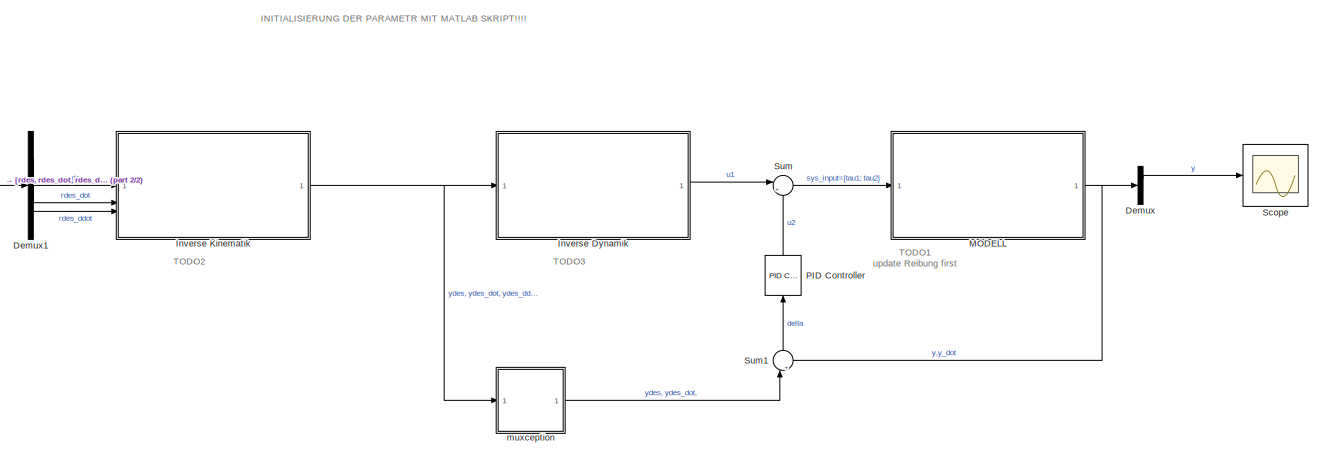
[diagram: root canvas - part 1/2, center side, full height]
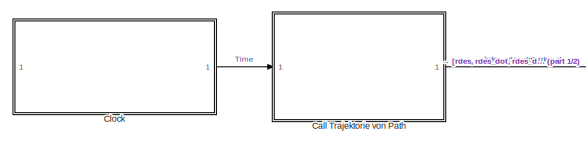
[diagram: root canvas - part 2/2, middle left region]
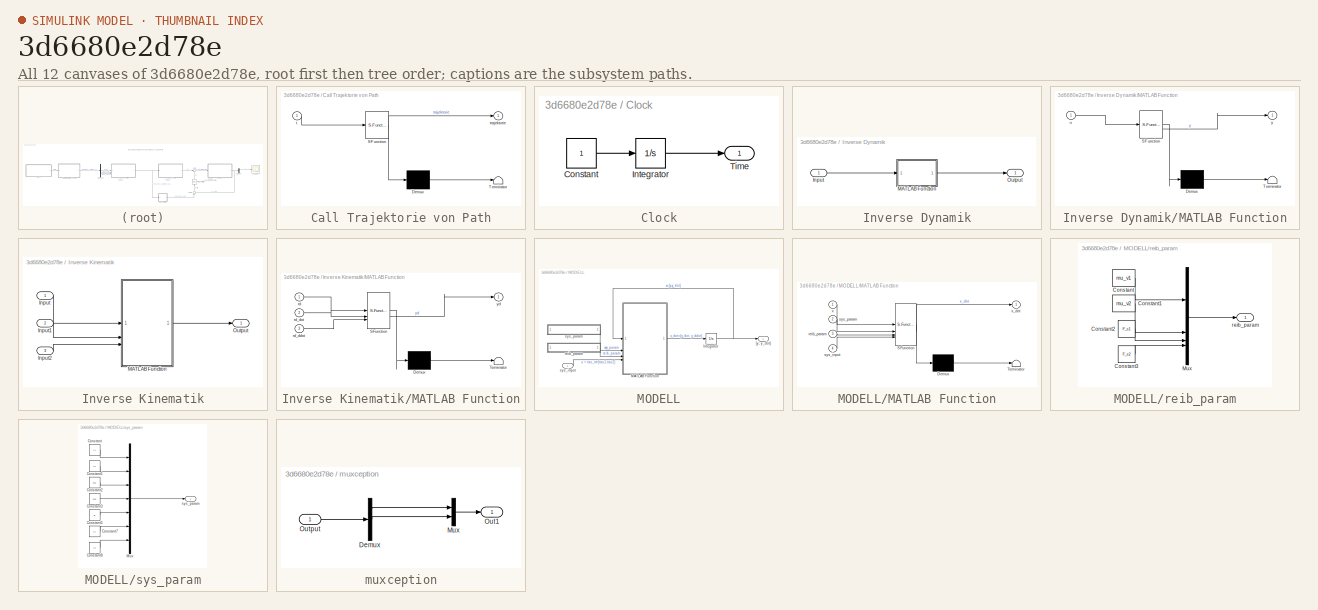
[diagram: thumbnail index - all 12 canvases of the model, root first then tree order]
MODEL slx_3d6680e2d78e
KIND model
CONFIG AbsTol = auto
CONFIG EnableMultiTasking = off
CONFIG FixedStep = auto
CONFIG MaxStep = auto
CONFIG MinStep = auto
CONFIG RelTol = 1e-3
CONFIG SampleTimeConstraint = Unconstrained
CONFIG SolverName = VariableStepAuto
CONFIG StartTime = 0.0
CONFIG StopTime = 10.0
BLOCK [SubSystem] Call Trajektorie von Path
  ErrorFcn = Stateflow.Translate.translate
  PermitHierarchicalResolution = ExplicitOnly
  SFBlockType = MATLAB Function
  TreatAsAtomicUnit = on
BLOCK [Demux] Call Trajektorie von Path/ Demux 
  Outputs = 1
BLOCK [S-Function] Call Trajektorie von Path/ SFunction 
  EnableBusSupport = on
  FunctionName = sf_sfun
  PortCounts = [1 2]
  SFcnIsStateOwnerBlock = off
  SFunctionDeploymentMode = off
  Tag = Stateflow S-Function 4
BLOCK [Terminator] Call Trajektorie von Path/ Terminator 
BLOCK [Inport] Call Trajektorie von Path/t
BLOCK [Outport] Call Trajektorie von Path/trajektorie
BLOCK [SubSystem] Clock
BLOCK [Constant] Clock/Constant
BLOCK [Integrator] Clock/Integrator
BLOCK [Outport] Clock/Time
BLOCK [Demux] Demux
  Outputs = 2
BLOCK [Demux] Demux1
  Outputs = 3
BLOCK [SubSystem] Inverse Dynamik
BLOCK [Inport] Inverse Dynamik/Input
BLOCK [SubSystem] Inverse Dynamik/MATLAB Function
  ErrorFcn = Stateflow.Translate.translate
  PermitHierarchicalResolution = ExplicitOnly
  SFBlockType = MATLAB Function
  TreatAsAtomicUnit = on
BLOCK [Demux] Inverse Dynamik/MATLAB Function/ Demux 
  Outputs = 1
BLOCK [S-Function] Inverse Dynamik/MATLAB Function/ SFunction 
  EnableBusSupport = on
  FunctionName = sf_sfun
  PortCounts = [1 2]
  SFcnIsStateOwnerBlock = off
  SFunctionDeploymentMode = off
  Tag = Stateflow S-Function 1
BLOCK [Terminator] Inverse Dynamik/MATLAB Function/ Terminator 
BLOCK [Inport] Inverse Dynamik/MATLAB Function/u
BLOCK [Outport] Inverse Dynamik/MATLAB Function/y
BLOCK [Outport] Inverse Dynamik/Output
BLOCK [SubSystem] Inverse Kinematik
BLOCK [Inport] Inverse Kinematik/Input
BLOCK [Inport] Inverse Kinematik/Input1
  Port = 2
BLOCK [Inport] Inverse Kinematik/Input2
  Port = 3
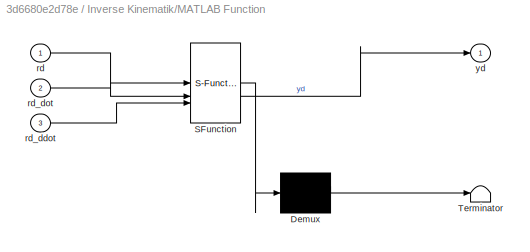
BLOCK [SubSystem] Inverse Kinematik/MATLAB Function
  ErrorFcn = Stateflow.Translate.translate
  PermitHierarchicalResolution = ExplicitOnly
  SFBlockType = MATLAB Function
  TreatAsAtomicUnit = on
BLOCK [Demux] Inverse Kinematik/MATLAB Function/ Demux 
  Outputs = 1
BLOCK [S-Function] Inverse Kinematik/MATLAB Function/ SFunction 
  EnableBusSupport = on
  FunctionName = sf_sfun
  PortCounts = [3 2]
  SFcnIsStateOwnerBlock = off
  SFunctionDeploymentMode = off
  Tag = Stateflow S-Function 3
BLOCK [Terminator] Inverse Kinematik/MATLAB Function/ Terminator 
BLOCK [Inport] Inverse Kinematik/MATLAB Function/rd
BLOCK [Inport] Inverse Kinematik/MATLAB Function/rd_ddot
  Port = 3
BLOCK [Inport] Inverse Kinematik/MATLAB Function/rd_dot
  Port = 2
BLOCK [Outport] Inverse Kinematik/MATLAB Function/yd
BLOCK [Outport] Inverse Kinematik/Output
BLOCK [SubSystem] MODELL
BLOCK [Integrator] MODELL/Integrator
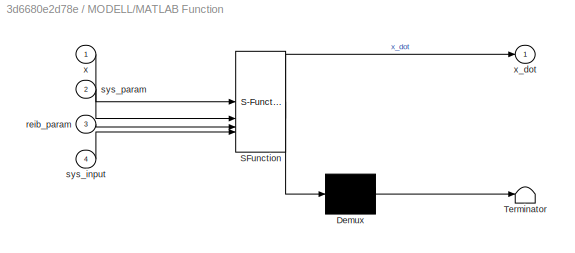
BLOCK [SubSystem] MODELL/MATLAB Function
  ErrorFcn = Stateflow.Translate.translate
  PermitHierarchicalResolution = ExplicitOnly
  SFBlockType = MATLAB Function
  TreatAsAtomicUnit = on
BLOCK [Demux] MODELL/MATLAB Function/ Demux 
  Outputs = 1
BLOCK [S-Function] MODELL/MATLAB Function/ SFunction 
  EnableBusSupport = on
  FunctionName = sf_sfun
  PortCounts = [4 2]
  SFcnIsStateOwnerBlock = off
  SFunctionDeploymentMode = off
  Tag = Stateflow S-Function 2
BLOCK [Terminator] MODELL/MATLAB Function/ Terminator 
BLOCK [Inport] MODELL/MATLAB Function/reib_param
  Port = 3
BLOCK [Inport] MODELL/MATLAB Function/sys_input
  Port = 4
BLOCK [Inport] MODELL/MATLAB Function/sys_param
  Port = 2
BLOCK [Inport] MODELL/MATLAB Function/x
BLOCK [Outport] MODELL/MATLAB Function/x_dot
BLOCK [Outport] MODELL/[y; y_dot]
BLOCK [SubSystem] MODELL/reib_param
BLOCK [Constant] MODELL/reib_param/Constant
  Value = mu_v1
BLOCK [Constant] MODELL/reib_param/Constant1
  Value = mu_v2
BLOCK [Constant] MODELL/reib_param/Constant2
  Value = F_s1
BLOCK [Constant] MODELL/reib_param/Constant3
  Value = F_s2
BLOCK [Mux] MODELL/reib_param/Mux
  DisplayOption = bar
BLOCK [Outport] MODELL/reib_param/reib_param
BLOCK [Inport] MODELL/sys_input
BLOCK [SubSystem] MODELL/sys_param
BLOCK [Constant] MODELL/sys_param/Constant
  Value = l1
BLOCK [Constant] MODELL/sys_param/Constant1
  Value = l2
BLOCK [Constant] MODELL/sys_param/Constant2
  Value = m1
BLOCK [Constant] MODELL/sys_param/Constant3
  Value = m2
BLOCK [Constant] MODELL/sys_param/Constant5
  Value = g
BLOCK [Constant] MODELL/sys_param/Constant7
  Value = I1
BLOCK [Constant] MODELL/sys_param/Constant8
  Value = I2
BLOCK [Mux] MODELL/sys_param/Mux
  DisplayOption = bar
  Inputs = 7
BLOCK [Outport] MODELL/sys_param/sys_param
BLOCK [Reference] PID Controller  REF=slpidlib/PID Controller
  LibrarySourceBlock = simulink/Continuous/PID Controller
  NameLocation = right
  SourceBlock = slpidlib/PID Controller
  SourceType = PID 1dof
BLOCK [Scope] Scope
  Floating = off
  NumInputPorts = 1
  ScopeSpecificationString = Simulink.scopes.TimeScopeBlockCfg('CurrentConfiguration', extmgr.ConfigurationSet(extmgr.Configuration('Core','General UI',true),extmgr.Configuration('Core','Source UI',true),extmgr.Configuration('Sources','WiredSimulink',true),extmgr.Configuration('Visuals','Time Domain',true),extmgr.Configuration('Tools','Plot Navigation',true),extmgr.Configuration('Tools','Measurements',true)),'Version','2024a'...<+1ch>
BLOCK [Sum] Sum
  Inputs = |++
BLOCK [Sum] Sum1
  Inputs = |+-
  NameLocation = right
BLOCK [SubSystem] muxception
BLOCK [Demux] muxception/Demux
  Outputs = 3
BLOCK [Mux] muxception/Mux
  DisplayOption = bar
  Inputs = 2
BLOCK [Outport] muxception/Out1
BLOCK [Inport] muxception/Output
ANNOTATION (root): TODO1 update Reibung first
ANNOTATION (root): TODO2
ANNOTATION (root): TODO3
ANNOTATION (root): INITIALISIERUNG DER PARAMETR MIT MATLAB SKRIPT!!!!
LINE Call Trajektorie von Path:1 -> Demux1:1
LINE Clock/Constant:1 -> Clock/Integrator:1
LINE Clock/Integrator:1 -> Clock/Time:1
LINE Clock:1 -> Call Trajektorie von Path:1
LINE Demux1:1 -> Inverse Kinematik:1
LINE Demux1:2 -> Inverse Kinematik:2
LINE Demux1:3 -> Inverse Kinematik:3
LINE Demux:1 -> Scope:1
LINE Inverse Dynamik/Input:1 -> Inverse Dynamik/MATLAB Function:1
LINE Inverse Dynamik/MATLAB Function:1 -> Inverse Dynamik/Output:1
LINE Inverse Dynamik:1 -> Sum:1
LINE Inverse Kinematik/Input1:1 -> Inverse Kinematik/MATLAB Function:2
LINE Inverse Kinematik/Input2:1 -> Inverse Kinematik/MATLAB Function:3
LINE Inverse Kinematik/Input:1 -> Inverse Kinematik/MATLAB Function:1
LINE Inverse Kinematik/MATLAB Function:1 -> Inverse Kinematik/Output:1
NET Inverse Kinematik:1 -> Inverse Dynamik:1, muxception:1
NET MODELL/Integrator:1 -> MODELL/MATLAB Function:1, MODELL/[y; y_dot]:1
LINE MODELL/MATLAB Function:1 -> MODELL/Integrator:1
LINE MODELL/reib_param/Constant1:1 -> MODELL/reib_param/Mux:2
LINE MODELL/reib_param/Constant2:1 -> MODELL/reib_param/Mux:3
LINE MODELL/reib_param/Constant3:1 -> MODELL/reib_param/Mux:4
LINE MODELL/reib_param/Constant:1 -> MODELL/reib_param/Mux:1
LINE MODELL/reib_param/Mux:1 -> MODELL/reib_param/reib_param:1
LINE MODELL/reib_param:1 -> MODELL/MATLAB Function:3
LINE MODELL/sys_input:1 -> MODELL/MATLAB Function:4
LINE MODELL/sys_param/Constant1:1 -> MODELL/sys_param/Mux:2
LINE MODELL/sys_param/Constant2:1 -> MODELL/sys_param/Mux:3
LINE MODELL/sys_param/Constant3:1 -> MODELL/sys_param/Mux:4
LINE MODELL/sys_param/Constant5:1 -> MODELL/sys_param/Mux:5
LINE MODELL/sys_param/Constant7:1 -> MODELL/sys_param/Mux:6
LINE MODELL/sys_param/Constant8:1 -> MODELL/sys_param/Mux:7
LINE MODELL/sys_param/Constant:1 -> MODELL/sys_param/Mux:1
LINE MODELL/sys_param/Mux:1 -> MODELL/sys_param/sys_param:1
LINE MODELL/sys_param:1 -> MODELL/MATLAB Function:2
NET MODELL:1 -> Demux:1, Sum1:2
LINE PID Controller:1 -> Sum:2
LINE Sum1:1 -> PID Controller:1
LINE Sum:1 -> MODELL:1
LINE muxception/Demux:1 -> muxception/Mux:1
LINE muxception/Demux:2 -> muxception/Mux:2
LINE muxception/Mux:1 -> muxception/Out1:1
LINE muxception/Output:1 -> muxception/Demux:1
LINE muxception:1 -> Sum1:1
note: NET lines group one-source signal fan-out (src -> all destinations, sorted); 1:1 wires keep LINE
CHART Inverse Dynamik/MATLAB Function states=1 transitions=1
  STATE_LABEL 'eML_blk_kernel()'
  STATE_LABEL 'SCRIPT:\nfunction y = fcn(u)\n\ny = u;\n'
CHART MODELL/MATLAB Function states=1 transitions=1
  STATE_LABEL 'eML_blk_kernel()'
  STATE_LABEL 'SCRIPT:\nfunction x_dot = fcn(x, sys_param, reib_param, sys_input)\n%x(1:3)=y\n%x(4:6)=y_dot\nM = MassMatrix(x(1:3), sys_param, sys_input);\nD = DMatrix(x(1:3), x(4:6), sys_param, sys_input, reib_param);\nG = GVector(x(1:3), sys_param, sys_input, reib_param);\ntau_R = CALCtau_R(x(1:3), x(4:6), sys_param, sys_input, reib_param);\n\n%State Space System\nx_dot = 123;\nend\n\n\n'
CHART Inverse Kinematik/MATLAB Function states=1 transitions=1
  STATE_LABEL 'eML_blk_kernel()'
  STATE_LABEL 'SCRIPT:\nfunction yd = fcn(rd,rd_dot,rd_ddot)\n\n%Initialisierung\nsyms alpha beta alpha_dot beta_dot alpha_ddot beta_ddot\ny = [alpha; beta];\ny_dot = [alpha_dot; beta_dot];\ny_ddot = [alpha_ddot; beta_ddot];\nT_0EF = T_0EF_fcn(alpha, beta, l1, l2);\n\n\nr = T_0EF(1:3,4);\n\n\n%Ort\neq1 = r == rd;\n\nq = solve(eq1, alpha, beta);\nalpha_sol = double(q.alpha(1));\nbeta_sol = double(q.beta(1));\ny_new = [alpha_sol; bet...<+1107ch>'
CHART Call Trajektorie von Path states=1 transitions=1
  STATE_LABEL 'eML_blk_kernel()'
  STATE_LABEL 'SCRIPT:\nfunction trajektorie = trajektorie(t)\n%Trajektorie\n%    TRAJEKTORIE = Trajektorie(T)\n\n%    This function was generated by the Symbolic Math Toolbox version 24.1.\n%    07-Jan-2025 10:14:32\n\nt2 = t.^2;\nt3 = t.^3;\nt4 = t.*7.030674334031603e-2;\nt5 = t.*5.130385555576637e-2;\nt6 = t2.*2.565192777788319e-2;\nt7 = t2.*3.515337167015802e-2;\ntrajektorie = [t3.*1.171779055671934e-2-t7;t3.*8.5506425926...<+106ch>'
CHART  states=0 transitions=0
CHART  states=0 transitions=0
CHART  states=0 transitions=0
CHART  states=0 transitions=0
